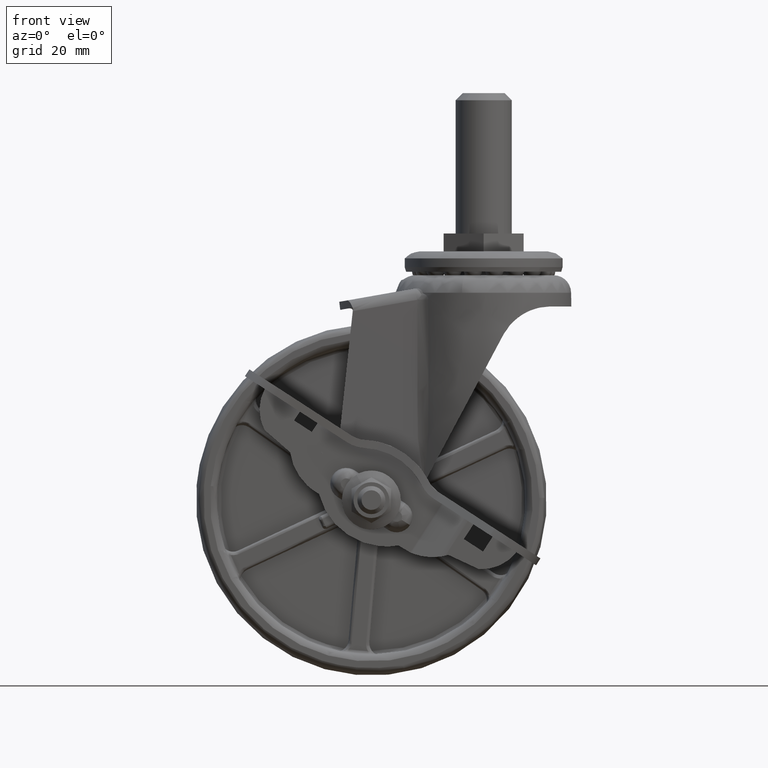
[diagram: clean part render]
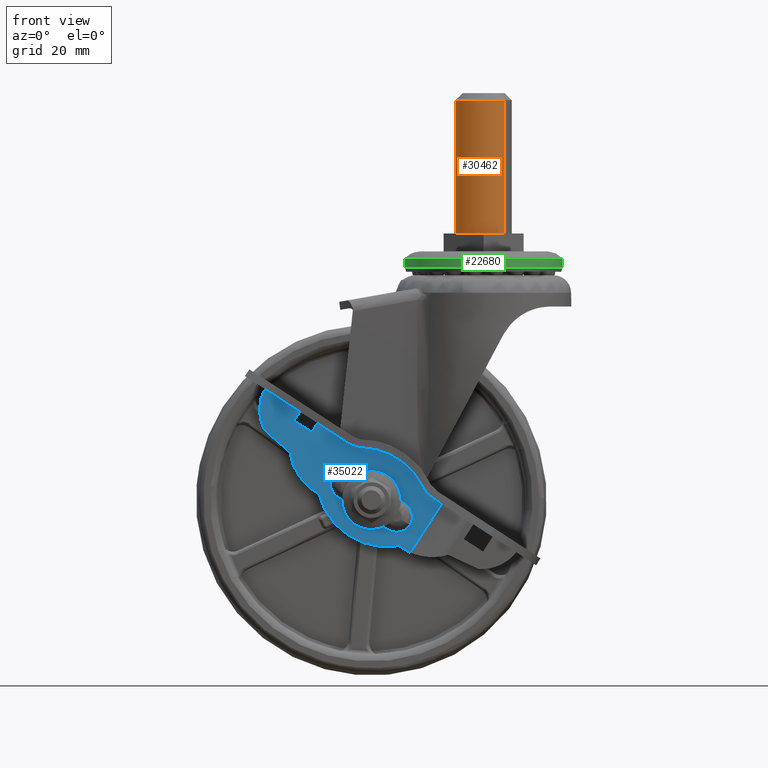
[diagram: same view with three faces highlighted in distinct colors, each labeled with its STEP entity id]
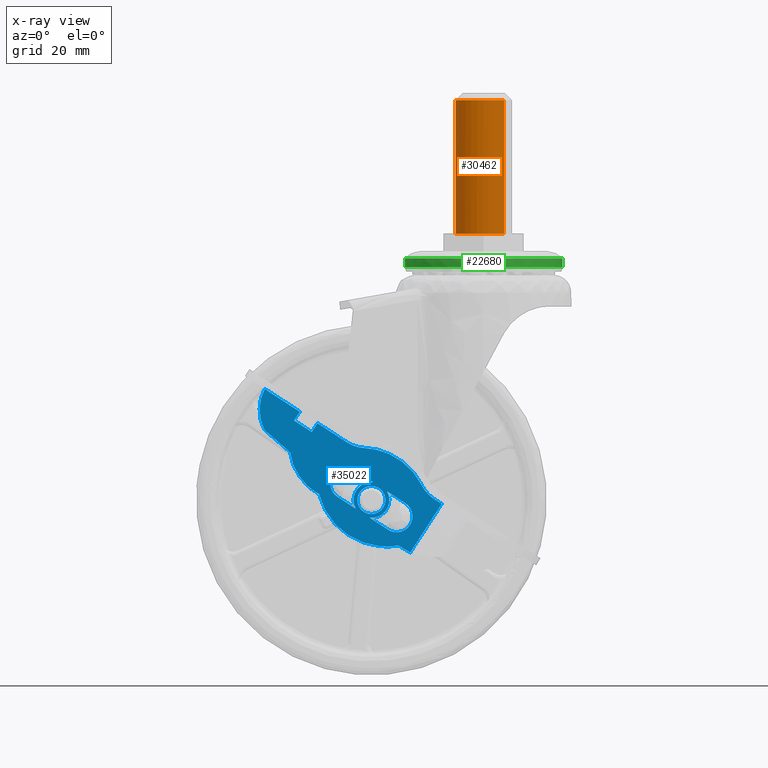
[diagram: x-ray of the same camera — body ghosted, the three highlighted faces saturated]
A machine part, front view with three faces highlighted in distinct colors.
The next image is the same camera in x-ray (body ghosted, the three faces saturated) — at least one of them is partly hidden behind the body in this view.
Their STEP definitions:

[orange] entity #30462 — the highlighted face is a freeform B-spline surface patch.
#30265=CARTESIAN_POINT('',(25.891555207823110,5.165936009926591,76.000003999999905));
#30266=VERTEX_POINT('',#30265);
#30279=CARTESIAN_POINT('',(25.891555207823110,5.165936009926591,114.000004000000000));
#30280=VERTEX_POINT('',#30279);
#30281=CARTESIAN_POINT('',(25.891555207823110,5.165936009926591,114.000004000000000));
#30282=CARTESIAN_POINT('',(25.891555207823110,5.165936009926591,76.000003999999905));
#30283=QUASI_UNIFORM_CURVE('',1,(#30281,#30282),.UNSPECIFIED.,.F.,.U.);
#30284=EDGE_CURVE('',#30280,#30266,#30283,.T.);
#30312=CARTESIAN_POINT('',(37.802994714591463,-5.506836364980723,114.000004232989600));
#30313=VERTEX_POINT('',#30312);
#30324=CARTESIAN_POINT('',(37.802994665510028,-5.506836247465170,76.000003999999905));
#30325=VERTEX_POINT('',#30324);
#30326=CARTESIAN_POINT('',(37.802994714591463,-5.506836364980723,114.000004232989600));
#30327=CARTESIAN_POINT('',(37.802994665510028,-5.506836247465170,76.000003999999905));
#30328=QUASI_UNIFORM_CURVE('',1,(#30326,#30327),.UNSPECIFIED.,.F.,.U.);
#30329=EDGE_CURVE('',#30313,#30325,#30328,.T.);
#30359=CARTESIAN_POINT('',(37.802994968098297,-5.506836605550030,114.950004000000010));
#30360=CARTESIAN_POINT('',(32.296158362548276,-11.309831573648330,114.950004000000040));
#30361=CARTESIAN_POINT('',(26.493163394449969,-5.802994968098299,114.950004000000010));
#30362=CARTESIAN_POINT('',(21.013085134599439,-0.602594876675613,114.950004000000020));
#30363=CARTESIAN_POINT('',(25.891554856476279,5.165936307056203,114.950004000000080));
#30364=CARTESIAN_POINT('',(37.802994968098297,-5.506836605550030,75.026253999999909));
#30365=CARTESIAN_POINT('',(32.296158362548276,-11.309831573648330,75.026253999999895));
#30366=CARTESIAN_POINT('',(26.493163394449969,-5.802994968098299,75.026253999999909));
#30367=CARTESIAN_POINT('',(21.013085134599439,-0.602594876675613,75.026253999999909));
#30368=CARTESIAN_POINT('',(25.891554856476279,5.165936307056203,75.026253999999923));
#30376=(BOUNDED_SURFACE()B_SPLINE_SURFACE(2,1,((#30359,#30364),(#30360,#30365),(#30361,#30366),(#30362,#30367),(#30363,#30368)),.UNSPECIFIED.,.F.,.F.,.U.)B_SPLINE_SURFACE_WITH_KNOTS((3,2,3),(2,2),(0.0,13.254833995939030,25.979474632040500),(0.0,39.923750000000133),.UNSPECIFIED.)GEOMETRIC_REPRESENTATION_ITEM()RATIONAL_B_SPLINE_SURFACE(((1.0,1.0),(0.707106781186548,0.707106781186548),(1.0,1.0),(0.718822509939086,0.718822509939086),(0.977505800795127,0.977505800795127)))REPRESENTATION_ITEM('')SURFACE());
#30377=CARTESIAN_POINT('',(24.0,0.0,76.000003999999905));
#30378=VERTEX_POINT('',#30377);
#30379=CARTESIAN_POINT('',(24.0,0.0,76.000003999999905));
#30380=CARTESIAN_POINT('',(23.999847842940671,0.643510031171080,76.000004000000018));
#30381=CARTESIAN_POINT('',(24.149019821728761,1.871927519651791,76.000003999999777));
#30382=CARTESIAN_POINT('',(24.796541092662739,3.640393637950841,76.000003999999890));
#30383=CARTESIAN_POINT('',(25.475913601007068,4.674668688427484,76.000003999999777));
#30384=CARTESIAN_POINT('',(25.891555207823110,5.165936009926591,76.000003999999905));
#30385=B_SPLINE_CURVE_WITH_KNOTS('',3,(#30379,#30380,#30381,#30382,#30383,#30384),.UNSPECIFIED.,.F.,.U.,(4,1,1,4),(0.000000036364717,1.930497636406071,3.685488021948359,5.615985621996162),.UNSPECIFIED.);
#30386=EDGE_CURVE('',#30378,#30266,#30385,.T.);
#30387=ORIENTED_EDGE('',*,*,#30386,.F.);
#30388=CARTESIAN_POINT('',(31.999998133525619,-7.999999999999782,76.000003999999905));
#30389=VERTEX_POINT('',#30388);
#30390=CARTESIAN_POINT('',(31.999998133525619,-7.999999999999782,76.000003999999905));
#30391=CARTESIAN_POINT('',(31.443675204074591,-8.000075926784309,76.000003999999933));
#30392=CARTESIAN_POINT('',(30.298326723929989,-7.880068269526567,76.000003999999905));
#30393=CARTESIAN_POINT('',(28.735132266251409,-7.363747761990829,76.000004000000104));
#30394=CARTESIAN_POINT('',(27.481430559701099,-6.643180828967821,76.000003999999336));
#30395=CARTESIAN_POINT('',(26.436681955353979,-5.796457646848727,76.000004000000700));
#30396=CARTESIAN_POINT('',(25.450210183873800,-4.694690556893815,76.000003999999521));
#30397=CARTESIAN_POINT('',(24.596522594283780,-3.209207920545875,76.000003999998412));
#30398=CARTESIAN_POINT('',(24.099652464510360,-1.570795052904364,76.000004000001596));
#30399=CARTESIAN_POINT('',(23.999962568613139,-0.490869182397266,76.000003999998938));
#30400=CARTESIAN_POINT('',(24.0,0.0,76.000003999999905));
#30401=B_SPLINE_CURVE_WITH_KNOTS('',3,(#30390,#30391,#30392,#30393,#30394,#30395,#30396,#30397,#30398,#30399,#30400),.UNSPECIFIED.,.F.,.U.,(4,1,1,1,1,1,1,1,4),(0.000000189147151,1.668967450818563,3.436141477493944,4.908803373754573,5.988703324687878,7.461324698652976,9.326659235644957,11.093825735496599,12.566448411033610),.UNSPECIFIED.);
#30402=EDGE_CURVE('',#30389,#30378,#30401,.T.);
#30403=ORIENTED_EDGE('',*,*,#30402,.F.);
#30404=CARTESIAN_POINT('',(37.802994665510028,-5.506836247465170,76.000003999999905));
#30405=CARTESIAN_POINT('',(37.453874921919123,-5.874812001144023,76.000004000000033));
#30406=CARTESIAN_POINT('',(36.659697057229863,-6.566323135300713,76.000003999999393));
#30407=CARTESIAN_POINT('',(35.273294143307218,-7.360060438259339,76.000004000001127));
#30408=CARTESIAN_POINT('',(33.690744139871818,-7.879208117960345,76.000003999997588));
#30409=CARTESIAN_POINT('',(32.574873519846072,-8.000083604101032,76.000004000002122));
#30410=CARTESIAN_POINT('',(31.999998133525619,-7.999999999999782,76.000003999999905));
#30411=B_SPLINE_CURVE_WITH_KNOTS('',3,(#30404,#30405,#30406,#30407,#30408,#30409,#30410),.UNSPECIFIED.,.F.,.U.,(4,1,1,1,4),(0.000000050936960,1.521718034725405,3.144914802204537,4.768053032111243,6.492670045708849),.UNSPECIFIED.);
#30412=EDGE_CURVE('',#30325,#30389,#30411,.T.);
#30413=ORIENTED_EDGE('',*,*,#30412,.F.);
#30414=ORIENTED_EDGE('',*,*,#30329,.F.);
#30415=CARTESIAN_POINT('',(31.999998133525619,-7.999999999999782,114.000004000000000));
#30416=VERTEX_POINT('',#30415);
#30417=CARTESIAN_POINT('',(37.802994714591463,-5.506836364980723,114.000004232989600));
#30418=CARTESIAN_POINT('',(37.453873612858089,-5.874808428165771,114.000004218972410));
#30419=CARTESIAN_POINT('',(36.659701487294633,-6.566343893410373,114.000004187086900));
#30420=CARTESIAN_POINT('',(35.479773124890642,-7.241786534217427,114.000004139712000));
#30421=CARTESIAN_POINT('',(33.927290746897157,-7.828671342839466,114.000004077381400));
#30422=CARTESIAN_POINT('',(32.811652438413780,-8.000442887828745,114.000004032587000));
#30423=CARTESIAN_POINT('',(31.999998133525619,-7.999999999999782,114.000004000000000));
#30424=B_SPLINE_CURVE_WITH_KNOTS('',3,(#30417,#30418,#30419,#30420,#30421,#30422,#30423),.UNSPECIFIED.,.F.,.U.,(4,1,1,1,4),(0.000000050934914,1.521718033746181,3.144914800175962,4.057901419125371,6.492670041523095),.UNSPECIFIED.);
#30425=EDGE_CURVE('',#30313,#30416,#30424,.T.);
#30426=ORIENTED_EDGE('',*,*,#30425,.T.);
#30427=CARTESIAN_POINT('',(26.834063232802428,-6.108445687599193,114.000003747577400));
#30428=VERTEX_POINT('',#30427);
#30429=CARTESIAN_POINT('',(31.999998133525619,-7.999999999999782,114.000004000000000));
#30430=CARTESIAN_POINT('',(31.356486042352529,-8.000168508811900,114.000003968555800));
#30431=CARTESIAN_POINT('',(30.274336689396389,-7.868655386055015,114.000003915679500));
#30432=CARTESIAN_POINT('',(28.493418223903650,-7.271514451139088,114.000003828658190));
#30433=CARTESIAN_POINT('',(27.436893104623699,-6.618707538146733,114.000003777033200));
#30434=CARTESIAN_POINT('',(26.834063232802428,-6.108445687599193,114.000003747577400));
#30435=B_SPLINE_CURVE_WITH_KNOTS('',3,(#30429,#30430,#30431,#30432,#30433,#30434),.UNSPECIFIED.,.F.,.U.,(4,1,1,4),(0.000000036375527,1.930497136305400,3.246738936219176,5.615984167119279),.UNSPECIFIED.);
#30436=EDGE_CURVE('',#30416,#30428,#30435,.T.);
#30437=ORIENTED_EDGE('',*,*,#30436,.T.);
#30438=CARTESIAN_POINT('',(24.0,0.0,114.000004000000000));
#30439=VERTEX_POINT('',#30438);
#30440=CARTESIAN_POINT('',(26.834063232802428,-6.108445687599193,114.000003747577400));
#30441=CARTESIAN_POINT('',(26.336401824703820,-5.687799066357888,114.000003764959800));
#30442=CARTESIAN_POINT('',(25.618315170450881,-4.911307649932366,114.000003797047500));
#30443=CARTESIAN_POINT('',(24.764721839171632,-3.518495185265170,114.000003854603310));
#30444=CARTESIAN_POINT('',(24.164444219343540,-1.954712408702894,114.000003919224200));
#30445=CARTESIAN_POINT('',(23.999786618403590,-0.687825386447249,114.000003971576700));
#30446=CARTESIAN_POINT('',(24.0,0.0,114.000004000000000));
#30447=B_SPLINE_CURVE_WITH_KNOTS('',3,(#30440,#30441,#30442,#30443,#30444,#30445,#30446),.UNSPECIFIED.,.F.,.U.,(4,1,1,1,4),(0.000000062096596,1.954819805773499,3.149447453545784,4.887040481567366,6.950466656076021),.UNSPECIFIED.);
#30448=EDGE_CURVE('',#30428,#30439,#30447,.T.);
#30449=ORIENTED_EDGE('',*,*,#30448,.T.);
#30450=CARTESIAN_POINT('',(24.0,0.0,114.000004000000000));
#30451=CARTESIAN_POINT('',(23.999883909884481,0.585008402496643,114.000004000000100));
#30452=CARTESIAN_POINT('',(24.106404465789790,1.550173353363872,114.000003999999810));
#30453=CARTESIAN_POINT('',(24.644110545050001,3.348294747636564,114.000004000000500));
#30454=CARTESIAN_POINT('',(25.305443121599549,4.473926253882575,114.000003999999510));
#30455=CARTESIAN_POINT('',(25.891555207823110,5.165936009926591,114.000004000000000));
#30456=B_SPLINE_CURVE_WITH_KNOTS('',3,(#30450,#30451,#30452,#30453,#30454,#30455),.UNSPECIFIED.,.F.,.U.,(4,1,1,4),(0.000000036364717,1.754998618458814,2.895715538095117,5.615985621996162),.UNSPECIFIED.);
#30457=EDGE_CURVE('',#30439,#30280,#30456,.T.);
#30458=ORIENTED_EDGE('',*,*,#30457,.T.);
#30459=ORIENTED_EDGE('',*,*,#30284,.T.);
#30460=EDGE_LOOP('',(#30387,#30403,#30413,#30414,#30426,#30437,#30449,#30458,#30459));
#30461=FACE_OUTER_BOUND('',#30460,.T.);
#30462=ADVANCED_FACE('',(#30461),#30376,.T.);

[blue] entity #35022 — the highlighted face is a freeform B-spline surface patch.
#31785=CARTESIAN_POINT('',(-3.999999999999116,-20.599997999999999,0.000002659344975));
#31786=VERTEX_POINT('',#31785);
#31787=CARTESIAN_POINT('',(-2.853002393134256,-20.599997999982889,2.803637398568071));
#31788=VERTEX_POINT('',#31787);
#31789=CARTESIAN_POINT('',(-3.999999999999116,-20.599997999999999,0.000002659344975));
#31790=CARTESIAN_POINT('',(-4.000114793399001,-20.599997999997829,0.355989914047486));
#31791=CARTESIAN_POINT('',(-3.917351236130132,-20.599997999994109,0.970785736977809));
#31792=CARTESIAN_POINT('',(-3.546900695545857,-20.599997999988119,1.943074696132661));
#31793=CARTESIAN_POINT('',(-3.148058123930286,-20.599997999984719,2.503706915100477));
#31794=CARTESIAN_POINT('',(-2.853002393134256,-20.599997999982889,2.803637398568071));
#31795=B_SPLINE_CURVE_WITH_KNOTS('',3,(#31789,#31790,#31791,#31792,#31793,#31794),.UNSPECIFIED.,.F.,.U.,(4,1,1,4),(0.000000041342588,1.067959592742188,1.844626081363610,3.106759728535650),.UNSPECIFIED.);
#31796=EDGE_CURVE('',#31786,#31788,#31795,.T.);
#31798=CARTESIAN_POINT('',(0.0,-20.599997999999999,-4.0));
#31799=VERTEX_POINT('',#31798);
#31800=CARTESIAN_POINT('',(0.0,-20.599997999999999,-4.0));
#31801=CARTESIAN_POINT('',(-0.458190125019186,-20.599997999999999,-4.000270218245190));
#31802=CARTESIAN_POINT('',(-1.177922034147095,-20.599998000000010,-3.874946366984247));
#31803=CARTESIAN_POINT('',(-2.069649927774568,-20.599997999999999,-3.452980205692264));
#31804=CARTESIAN_POINT('',(-2.835788179877818,-20.599998000000010,-2.885097272799270));
#31805=CARTESIAN_POINT('',(-3.436270836559393,-20.599997999999971,-2.134712337973735));
#31806=CARTESIAN_POINT('',(-3.889271402200499,-20.599998000000049,-1.112504758669278));
#31807=CARTESIAN_POINT('',(-4.000231151162418,-20.599997999999879,-0.425449963570070));
#31808=CARTESIAN_POINT('',(-3.999999999999116,-20.599997999999999,0.000002659344975));
#31809=B_SPLINE_CURVE_WITH_KNOTS('',3,(#31800,#31801,#31802,#31803,#31804,#31805,#31806,#31807,#31808),.UNSPECIFIED.,.F.,.U.,(4,1,1,1,1,1,4),(0.000000106997262,1.374480489088280,2.159925737196872,2.945334125939792,4.221602233078444,5.007048705688931,6.283344476228193),.UNSPECIFIED.);
#31810=EDGE_CURVE('',#31799,#31786,#31809,.T.);
#31812=CARTESIAN_POINT('',(3.999999999999116,-20.599997999999999,-0.000002659344962));
#31813=VERTEX_POINT('',#31812);
#31814=CARTESIAN_POINT('',(3.999999999999116,-20.599997999999999,-0.000002659344962));
#31815=CARTESIAN_POINT('',(4.000182247015878,-20.599997999999999,-0.392723043180478));
#31816=CARTESIAN_POINT('',(3.902792567816218,-20.599997999999999,-1.047108449243113));
#31817=CARTESIAN_POINT('',(3.550414151882421,-20.599998000000010,-1.897745099689633));
#31818=CARTESIAN_POINT('',(3.038984528893709,-20.599997999999960,-2.663395669878108));
#31819=CARTESIAN_POINT('',(2.328183865178541,-20.599997999999971,-3.307623950185911));
#31820=CARTESIAN_POINT('',(1.275974016967522,-20.599998000000049,-3.853468570959291));
#31821=CARTESIAN_POINT('',(0.490956482440489,-20.599997999999989,-4.000457285593745));
#31822=CARTESIAN_POINT('',(0.0,-20.599997999999999,-4.0));
#31823=B_SPLINE_CURVE_WITH_KNOTS('',3,(#31814,#31815,#31816,#31817,#31818,#31819,#31820,#31821,#31822),.UNSPECIFIED.,.F.,.U.,(4,1,1,1,1,1,4),(0.000000110644378,1.178116819951383,1.963560104039633,2.748990306226920,3.927054563267981,4.810684243220260,6.283341478451811),.UNSPECIFIED.);
#31824=EDGE_CURVE('',#31813,#31799,#31823,.T.);
#31826=CARTESIAN_POINT('',(2.803636458468625,-20.599998000017411,2.853001453007910));
#31827=VERTEX_POINT('',#31826);
#31828=CARTESIAN_POINT('',(2.803636458468625,-20.599998000017411,2.853001453007910));
#31829=CARTESIAN_POINT('',(2.992457688304966,-20.599998000016281,2.667481213783360));
#31830=CARTESIAN_POINT('',(3.354365805613513,-20.599998000013620,2.233250515288067));
#31831=CARTESIAN_POINT('',(3.850213758089908,-20.599998000007901,1.290174126079419));
#31832=CARTESIAN_POINT('',(4.000458294831430,-20.599998000003009,0.496402422948831));
#31833=CARTESIAN_POINT('',(3.999999999999116,-20.599997999999999,-0.000002659344962));
#31834=B_SPLINE_CURVE_WITH_KNOTS('',3,(#31828,#31829,#31830,#31831,#31832,#31833),.UNSPECIFIED.,.F.,.U.,(4,1,1,4),(0.000000046116884,0.794145862405030,1.687553033527310,3.176583311475166),.UNSPECIFIED.);
#31835=EDGE_CURVE('',#31827,#31813,#31834,.T.);
#31916=CARTESIAN_POINT('',(0.0,-20.599997999999999,4.0));
#31917=VERTEX_POINT('',#31916);
#31918=CARTESIAN_POINT('',(-2.853002393134256,-20.599997999982889,2.803637398568071));
#31919=CARTESIAN_POINT('',(-2.597966208041948,-20.599997999984410,3.063340268168830));
#31920=CARTESIAN_POINT('',(-2.042780086373889,-20.599997999987789,3.491875479594836));
#31921=CARTESIAN_POINT('',(-1.058783485551710,-20.599997999993619,3.904525681214009));
#31922=CARTESIAN_POINT('',(-0.363989897876837,-20.599997999997822,4.000114526771202));
#31923=CARTESIAN_POINT('',(0.0,-20.599997999999999,4.0));
#31924=B_SPLINE_CURVE_WITH_KNOTS('',3,(#31918,#31919,#31920,#31921,#31922,#31923),.UNSPECIFIED.,.F.,.U.,(4,1,1,4),(0.000000046051216,1.091961465703093,2.084619748657268,3.176581168237858),.UNSPECIFIED.);
#31925=EDGE_CURVE('',#31788,#31917,#31924,.T.);
#31949=CARTESIAN_POINT('',(0.0,-20.599997999999999,4.0));
#31950=CARTESIAN_POINT('',(0.355988445275423,-20.599998000002230,4.000116438927324));
#31951=CARTESIAN_POINT('',(0.970782217243040,-20.599998000006028,3.917345440075245));
#31952=CARTESIAN_POINT('',(1.943081822720900,-20.599998000012050,3.546915145898034));
#31953=CARTESIAN_POINT('',(2.503697797299604,-20.599998000015560,3.148044481832762));
#31954=CARTESIAN_POINT('',(2.803636458468625,-20.599998000017411,2.853001453007910));
#31955=B_SPLINE_CURVE_WITH_KNOTS('',3,(#31949,#31950,#31951,#31952,#31953,#31954),.UNSPECIFIED.,.F.,.U.,(4,1,1,4),(0.000000041281595,1.067960325557815,1.844627347000021,3.106761860199232),.UNSPECIFIED.);
#31956=EDGE_CURVE('',#31917,#31827,#31955,.T.);
#32146=CARTESIAN_POINT('',(17.419007971396450,-20.599995000000000,-6.528239579675030));
#32147=VERTEX_POINT('',#32146);
#32162=CARTESIAN_POINT('',(17.419007971396450,-20.599995000000050,9.999901710113640));
#32163=VERTEX_POINT('',#32162);
#32171=CARTESIAN_POINT('',(17.419007971396450,-20.599995000000000,-6.528239579675030));
#32172=CARTESIAN_POINT('',(17.419007971396450,-20.599995000000050,9.999901710113640));
#32173=QUASI_UNIFORM_CURVE('',1,(#32171,#32172),.UNSPECIFIED.,.F.,.U.);
#32174=EDGE_CURVE('',#32147,#32163,#32173,.T.);
#32819=CARTESIAN_POINT('',(-8.600002004001491,-20.599998000000049,4.499999817902670));
#32820=VERTEX_POINT('',#32819);
#32834=CARTESIAN_POINT('',(-13.100000239122000,-20.599998000000049,0.000002713105056));
#32835=VERTEX_POINT('',#32834);
#32836=CARTESIAN_POINT('',(-13.100000239122000,-20.599998000000049,0.000002713105056));
#32837=CARTESIAN_POINT('',(-13.100021250728330,-20.599998000000049,0.294516051601220));
#32838=CARTESIAN_POINT('',(-13.034776033689511,-20.599998000000060,0.957208148606573));
#32839=CARTESIAN_POINT('',(-12.685792961055450,-20.599998000000060,2.013881728582223));
#32840=CARTESIAN_POINT('',(-11.962268563344040,-20.599998000000010,3.097082203859753));
#32841=CARTESIAN_POINT('',(-11.001539096523860,-20.599998000000159,3.865831862658455));
#32842=CARTESIAN_POINT('',(-9.851563309469809,-20.599997999999871,4.375399510154083));
#32843=CARTESIAN_POINT('',(-9.078643144027039,-20.599998000000191,4.500287044772153));
#32844=CARTESIAN_POINT('',(-8.600002004001491,-20.599998000000049,4.499999817902670));
#32845=B_SPLINE_CURVE_WITH_KNOTS('',3,(#32836,#32837,#32838,#32839,#32840,#32841,#32842,#32843,#32844),.UNSPECIFIED.,.F.,.U.,(4,1,1,1,1,1,4),(0.000000090780643,0.883574610589159,1.988093644369811,3.313494045979655,4.749317224584342,5.632918526467256,7.068758148623585),.UNSPECIFIED.);
#32846=EDGE_CURVE('',#32835,#32820,#32845,.T.);
#32848=CARTESIAN_POINT('',(-8.600002503814650,-20.599998000000049,-4.499999846824526));
#32849=VERTEX_POINT('',#32848);
#32850=CARTESIAN_POINT('',(-8.600002503814650,-20.599998000000049,-4.499999846824526));
#32851=CARTESIAN_POINT('',(-9.041804450769609,-20.599998000000060,-4.500193402472565));
#32852=CARTESIAN_POINT('',(-9.814832482490591,-20.599998000000060,-4.385208115225157));
#32853=CARTESIAN_POINT('',(-10.734014472416000,-20.599998000000049,-3.991118261695493));
#32854=CARTESIAN_POINT('',(-11.439972823340179,-20.599998000000031,-3.519393710795543));
#32855=CARTESIAN_POINT('',(-12.029416104331810,-20.599998000000120,-2.958226920184599));
#32856=CARTESIAN_POINT('',(-12.540633383497900,-20.599997999999982,-2.232349942130576));
#32857=CARTESIAN_POINT('',(-12.975417866951650,-20.599998000000109,-1.251568129819948));
#32858=CARTESIAN_POINT('',(-13.100294618379831,-20.599998000000021,-0.478642007671842));
#32859=CARTESIAN_POINT('',(-13.100000239122000,-20.599998000000049,0.000002713105056));
#32860=B_SPLINE_CURVE_WITH_KNOTS('',3,(#32850,#32851,#32852,#32853,#32854,#32855,#32856,#32857,#32858,#32859),.UNSPECIFIED.,.F.,.U.,(4,1,1,1,1,1,1,4),(0.000000087387338,1.325383863698427,2.319449881345633,2.982154067841628,3.865717115931084,4.749319102387242,5.632920752636263,7.068760941593856),.UNSPECIFIED.);
#32861=EDGE_CURVE('',#32849,#32835,#32860,.T.);
#32920=CARTESIAN_POINT('',(-2.404269113033500,-20.599997999999999,-4.500002964919260));
#32921=VERTEX_POINT('',#32920);
#32965=CARTESIAN_POINT('',(-8.600002503814650,-20.599998000000049,-4.499999846824526));
#32966=CARTESIAN_POINT('',(-2.404269113033500,-20.599997999999999,-4.500002964919260));
#32967=QUASI_UNIFORM_CURVE('',1,(#32965,#32966),.UNSPECIFIED.,.F.,.U.);
#32968=EDGE_CURVE('',#32849,#32921,#32967,.T.);
#32987=CARTESIAN_POINT('',(-2.404270455171770,-20.599997999999999,4.500002247839120));
#32988=VERTEX_POINT('',#32987);
#33032=CARTESIAN_POINT('',(-2.404270455171770,-20.599997999999999,4.500002247839120));
#33033=CARTESIAN_POINT('',(-8.600002004001491,-20.599998000000049,4.499999817902670));
#33034=QUASI_UNIFORM_CURVE('',1,(#33032,#33033),.UNSPECIFIED.,.F.,.U.);
#33035=EDGE_CURVE('',#32988,#32820,#33034,.T.);
#33091=CARTESIAN_POINT('',(13.100000239123339,-20.599998000000049,-0.000000969659531));
#33092=VERTEX_POINT('',#33091);
#33105=CARTESIAN_POINT('',(8.599998474244751,-20.599998000000049,4.500006563661061));
#33106=VERTEX_POINT('',#33105);
#33107=CARTESIAN_POINT('',(8.599998474244751,-20.599998000000049,4.500006563661061));
#33108=CARTESIAN_POINT('',(8.968163772292783,-20.599998000000031,4.500118360786585));
#33109=CARTESIAN_POINT('',(9.630787028121574,-20.599998000000092,4.418197617791265));
#33110=CARTESIAN_POINT('',(10.536410808543270,-20.599998000000021,4.094190919451374));
#33111=CARTESIAN_POINT('',(11.297930126269600,-20.599998000000060,3.637740337422949));
#33112=CARTESIAN_POINT('',(12.038074045237879,-20.599998000000038,2.967011081863597));
#33113=CARTESIAN_POINT('',(12.626606814188650,-20.599998000000060,2.109273735981320));
#33114=CARTESIAN_POINT('',(13.013667097657670,-20.599997999999889,1.067601799274640));
#33115=CARTESIAN_POINT('',(13.100085434139110,-20.599998000000198,0.368162255579845));
#33116=CARTESIAN_POINT('',(13.100000239123339,-20.599998000000049,-0.000000969659531));
#33117=B_SPLINE_CURVE_WITH_KNOTS('',3,(#33107,#33108,#33109,#33110,#33111,#33112,#33113,#33114,#33115,#33116),.UNSPECIFIED.,.F.,.U.,(4,1,1,1,1,1,1,4),(0.000000090425846,1.104481562927635,1.988096695476520,2.871707991114341,3.755274238373714,4.970226386678196,5.964280230598077,7.068768997870100),.UNSPECIFIED.);
#33118=EDGE_CURVE('',#33106,#33092,#33117,.T.);
#33163=CARTESIAN_POINT('',(2.404266925412065,-20.599997999999999,4.500004133724610));
#33164=VERTEX_POINT('',#33163);
#33208=CARTESIAN_POINT('',(8.599998474244751,-20.599998000000049,4.500006563661061));
#33209=CARTESIAN_POINT('',(2.404266925412065,-20.599997999999999,4.500004133724610));
#33210=QUASI_UNIFORM_CURVE('',1,(#33208,#33209),.UNSPECIFIED.,.F.,.U.);
#33211=EDGE_CURVE('',#33106,#33164,#33210,.T.);
#33251=CARTESIAN_POINT('',(8.599997974431599,-20.599998000000049,-4.500008502979901));
#33252=VERTEX_POINT('',#33251);
#33264=CARTESIAN_POINT('',(13.100000239123339,-20.599998000000049,-0.000000969659531));
#33265=CARTESIAN_POINT('',(13.100210710510980,-20.599998000000060,-0.441812474931998));
#33266=CARTESIAN_POINT('',(12.990641330480431,-20.599998000000038,-1.177994956813990));
#33267=CARTESIAN_POINT('',(12.594231414142490,-20.599998000000060,-2.134975676048819));
#33268=CARTESIAN_POINT('',(12.100980200874449,-20.599998000000038,-2.873187991853914));
#33269=CARTESIAN_POINT('',(11.499315472013519,-20.599998000000060,-3.474792586047733));
#33270=CARTESIAN_POINT('',(10.707158239670591,-20.599998000000021,-4.018453405157779));
#33271=CARTESIAN_POINT('',(9.741267656584073,-20.599998000000170,-4.404643451461394));
#33272=CARTESIAN_POINT('',(8.968153942359406,-20.599997999999822,-4.500085408567428));
#33273=CARTESIAN_POINT('',(8.599997974431599,-20.599998000000049,-4.500008502979901));
#33274=B_SPLINE_CURVE_WITH_KNOTS('',3,(#33264,#33265,#33266,#33267,#33268,#33269,#33270,#33271,#33272,#33273),.UNSPECIFIED.,.F.,.U.,(4,1,1,1,1,1,1,4),(0.000000089736719,1.325385407898647,2.209000696414757,3.092606069815572,3.976170075179722,4.749324627321556,5.964280372790872,7.068769166076214),.UNSPECIFIED.);
#33275=EDGE_CURVE('',#33092,#33252,#33274,.T.);
#33306=CARTESIAN_POINT('',(2.404264583645800,-20.599997999999999,-4.500005384885160));
#33307=VERTEX_POINT('',#33306);
#33351=CARTESIAN_POINT('',(2.404264583645800,-20.599997999999999,-4.500005384885160));
#33352=CARTESIAN_POINT('',(8.599997974431599,-20.599998000000049,-4.500008502979901));
#33353=QUASI_UNIFORM_CURVE('',1,(#33351,#33352),.UNSPECIFIED.,.F.,.U.);
#33354=EDGE_CURVE('',#33307,#33252,#33353,.T.);
#33552=CARTESIAN_POINT('',(-24.822641958871301,-20.599995000000099,6.999903662449199));
#33553=VERTEX_POINT('',#33552);
#33566=CARTESIAN_POINT('',(-30.822633342957150,-20.599995000000050,6.999906432973430));
#33567=VERTEX_POINT('',#33566);
#33573=CARTESIAN_POINT('',(-24.822641958871301,-20.599995000000099,6.999903662449199));
#33574=CARTESIAN_POINT('',(-30.822633342957150,-20.599995000000050,6.999906432973430));
#33575=QUASI_UNIFORM_CURVE('',1,(#33573,#33574),.UNSPECIFIED.,.F.,.U.);
#33576=EDGE_CURVE('',#33553,#33567,#33575,.T.);
#33586=CARTESIAN_POINT('',(-24.822641270901450,-20.599995000000099,9.999900462693001));
#33587=VERTEX_POINT('',#33586);
#33599=CARTESIAN_POINT('',(-24.822641270901450,-20.599995000000099,9.999900462693001));
#33600=CARTESIAN_POINT('',(-24.822641958871301,-20.599995000000099,6.999903662449199));
#33601=QUASI_UNIFORM_CURVE('',1,(#33599,#33600),.UNSPECIFIED.,.F.,.U.);
#33602=EDGE_CURVE('',#33587,#33553,#33601,.T.);
#33612=CARTESIAN_POINT('',(-30.822632654987700,-20.599995000000099,9.999901669435650));
#33613=VERTEX_POINT('',#33612);
#33643=CARTESIAN_POINT('',(-30.822633342957150,-20.599995000000050,6.999906432973430));
#33644=CARTESIAN_POINT('',(-30.822632654987700,-20.599995000000099,9.999901669435650));
#33645=QUASI_UNIFORM_CURVE('',1,(#33643,#33644),.UNSPECIFIED.,.F.,.U.);
#33646=EDGE_CURVE('',#33567,#33613,#33645,.T.);
#33753=CARTESIAN_POINT('',(-2.404270455171770,-20.599997999999999,4.500002247839120));
#33754=CARTESIAN_POINT('',(-2.809375624131335,-20.599998000000060,4.283727722897188));
#33755=CARTESIAN_POINT('',(-3.513533062951845,-20.599997999999921,3.774649066652951));
#33756=CARTESIAN_POINT('',(-4.214267996651473,-20.599998000000081,2.928951170070882));
#33757=CARTESIAN_POINT('',(-4.702491096587749,-20.599997999999960,2.048369726177865));
#33758=CARTESIAN_POINT('',(-5.076032445220465,-20.599998000000038,0.955451319976688));
#33759=CARTESIAN_POINT('',(-5.160239251436306,-20.599997999999989,-0.466596782799452));
#33760=CARTESIAN_POINT('',(-4.829807024360631,-20.599998000000021,-1.788862546360701));
#33761=CARTESIAN_POINT('',(-4.336195141645873,-20.599998000000021,-2.734355136807319));
#33762=CARTESIAN_POINT('',(-3.622315005156052,-20.599997999999971,-3.674149112243540));
#33763=CARTESIAN_POINT('',(-2.936190124770258,-20.599998000000038,-4.216384534562227));
#33764=CARTESIAN_POINT('',(-2.404269113033500,-20.599997999999999,-4.500002964919260));
#33765=B_SPLINE_CURVE_WITH_KNOTS('',3,(#33753,#33754,#33755,#33756,#33757,#33758,#33759,#33760,#33761,#33762,#33763,#33764),.UNSPECIFIED.,.F.,.U.,(4,1,1,1,1,1,1,1,1,4),(0.000000377409336,1.377642274167462,2.583162850800310,3.272029597222439,4.391389577217612,6.027315921445515,7.491176457491763,8.438343233022504,9.213323898633524,11.021507584462629),.UNSPECIFIED.);
#33766=EDGE_CURVE('',#32988,#32921,#33765,.T.);
#33795=CARTESIAN_POINT('',(2.404264583645800,-20.599997999999999,-4.500005384885160));
#33796=CARTESIAN_POINT('',(2.809358463182625,-20.599997999999950,-4.283728836571696));
#33797=CARTESIAN_POINT('',(3.584040508486123,-20.599998000000092,-3.723802585541466));
#33798=CARTESIAN_POINT('',(4.355026656324252,-20.599997999999999,-2.743889646160882));
#33799=CARTESIAN_POINT('',(4.881219364575443,-20.599998000000070,-1.622564838174463));
#33800=CARTESIAN_POINT('',(5.139730967693303,-20.599997999999619,-0.463554844460551));
#33801=CARTESIAN_POINT('',(5.081171360386001,-20.599998000000390,0.923997170567652));
#33802=CARTESIAN_POINT('',(4.707058456555296,-20.599997999999470,2.082974141941886));
#33803=CARTESIAN_POINT('',(4.084925069898119,-20.599998000000362,3.120604429603169));
#33804=CARTESIAN_POINT('',(3.354480597772592,-20.599997999999580,3.903119102866514));
#33805=CARTESIAN_POINT('',(2.708051325772276,-20.599998000000380,4.337724103453842));
#33806=CARTESIAN_POINT('',(2.404266925412065,-20.599997999999999,4.500004133724610));
#33807=B_SPLINE_CURVE_WITH_KNOTS('',3,(#33795,#33796,#33797,#33798,#33799,#33800,#33801,#33802,#33803,#33804,#33805,#33806),.UNSPECIFIED.,.F.,.U.,(4,1,1,1,1,1,1,1,1,4),(0.000000377413505,1.377643416261531,2.841489341547248,3.702552665176516,5.080258817913386,6.371752093359675,7.835604274525411,8.696671045641573,9.988257937143279,11.021516722085799),.UNSPECIFIED.);
#33808=EDGE_CURVE('',#33307,#33164,#33807,.T.);
#34400=CARTESIAN_POINT('',(-14.759762260498460,-20.599995000000000,9.999907050476690));
#34401=VERTEX_POINT('',#34400);
#34402=CARTESIAN_POINT('',(-14.759762260498460,-20.599995000000000,9.999907050476690));
#34403=CARTESIAN_POINT('',(-24.822641270901450,-20.599995000000099,9.999900462693001));
#34404=QUASI_UNIFORM_CURVE('',1,(#34402,#34403),.UNSPECIFIED.,.F.,.U.);
#34405=EDGE_CURVE('',#34401,#33587,#34404,.T.);
#34416=CARTESIAN_POINT('',(-42.749997931908602,-20.599995000000000,9.999906707537431));
#34417=VERTEX_POINT('',#34416);
#34423=CARTESIAN_POINT('',(-30.822632654987700,-20.599995000000099,9.999901669435650));
#34424=CARTESIAN_POINT('',(-42.749997931908602,-20.599995000000000,9.999906707537431));
#34425=QUASI_UNIFORM_CURVE('',1,(#34423,#34424),.UNSPECIFIED.,.F.,.U.);
#34426=EDGE_CURVE('',#33613,#34417,#34425,.T.);
#34517=CARTESIAN_POINT('',(14.759765863911401,-20.599995000000000,9.999901770100861));
#34518=VERTEX_POINT('',#34517);
#34519=CARTESIAN_POINT('',(17.419007971396450,-20.599995000000050,9.999901710113640));
#34520=CARTESIAN_POINT('',(14.759765863911401,-20.599995000000000,9.999901770100861));
#34521=QUASI_UNIFORM_CURVE('',1,(#34519,#34520),.UNSPECIFIED.,.F.,.U.);
#34522=EDGE_CURVE('',#32163,#34518,#34521,.T.);
#34571=CARTESIAN_POINT('',(-36.346523480853897,-20.599995000000000,0.123933556907549));
#34572=VERTEX_POINT('',#34571);
#34578=CARTESIAN_POINT('',(-42.749997931908602,-20.599995000000000,9.999906707537431));
#34579=CARTESIAN_POINT('',(-42.668050618068357,-20.599994999999961,9.013617695959688));
#34580=CARTESIAN_POINT('',(-42.267157101592062,-20.599995000000110,7.060911470416404));
#34581=CARTESIAN_POINT('',(-41.142730684799460,-20.599994999999911,4.676277809463512));
#34582=CARTESIAN_POINT('',(-39.847845705641838,-20.599995000000170,2.925796152455209));
#34583=CARTESIAN_POINT('',(-38.364367173913791,-20.599995000000110,1.423170825207196));
#34584=CARTESIAN_POINT('',(-37.157591139833499,-20.599994999999922,0.570421106470698));
#34585=CARTESIAN_POINT('',(-36.346523480853897,-20.599995000000000,0.123933556907549));
#34586=B_SPLINE_CURVE_WITH_KNOTS('',3,(#34578,#34579,#34580,#34581,#34582,#34583,#34584,#34585),.UNSPECIFIED.,.F.,.U.,(4,1,1,1,1,4),(0.000000052189719,2.969016224996727,5.938039305156451,7.853511549503828,9.481698483112300,12.259164723482471),.UNSPECIFIED.);
#34587=EDGE_CURVE('',#34417,#34572,#34586,.T.);
#34600=CARTESIAN_POINT('',(-26.876802502138151,-20.599995000000000,-1.205191403941498));
#34601=VERTEX_POINT('',#34600);
#34607=CARTESIAN_POINT('',(-36.346523480853897,-20.599995000000000,0.123933556907549));
#34608=CARTESIAN_POINT('',(-26.876802502138151,-20.599995000000000,-1.205191403941498));
#34609=QUASI_UNIFORM_CURVE('',1,(#34607,#34608),.UNSPECIFIED.,.F.,.U.);
#34610=EDGE_CURVE('',#34572,#34601,#34609,.T.);
#34637=CARTESIAN_POINT('',(-13.500010966117561,-20.599995000000000,-6.700060375021470));
#34638=VERTEX_POINT('',#34637);
#34644=CARTESIAN_POINT('',(-26.876802502138151,-20.599995000000000,-1.205191403941498));
#34645=CARTESIAN_POINT('',(-26.034336836770500,-20.599994999999950,-2.181484848771320));
#34646=CARTESIAN_POINT('',(-24.490183193153779,-20.599995000000010,-3.584160557068757));
#34647=CARTESIAN_POINT('',(-21.706964678491499,-20.599994999999989,-5.266238088387287));
#34648=CARTESIAN_POINT('',(-19.021661614216050,-20.599994999999961,-6.278460251530685));
#34649=CARTESIAN_POINT('',(-16.121106326019131,-20.599994999999950,-6.765241411215177));
#34650=CARTESIAN_POINT('',(-14.356986868231770,-20.599995000000138,-6.768003391971639));
#34651=CARTESIAN_POINT('',(-13.500010966117561,-20.599995000000000,-6.700060375021470));
#34652=B_SPLINE_CURVE_WITH_KNOTS('',3,(#34644,#34645,#34646,#34647,#34648,#34649,#34650,#34651),.UNSPECIFIED.,.F.,.U.,(4,1,1,1,1,4),(0.000000046576751,3.868499115200967,6.213048207356202,9.729843762515488,12.426089436491861,15.005085952154751),.UNSPECIFIED.);
#34653=EDGE_CURVE('',#34601,#34638,#34652,.T.);
#34686=CARTESIAN_POINT('',(13.499990284681941,-20.599995000000000,-6.700055743151070));
#34687=VERTEX_POINT('',#34686);
#34693=CARTESIAN_POINT('',(-13.500010966117561,-20.599995000000000,-6.700060375021470));
#34694=CARTESIAN_POINT('',(-12.253496021386740,-20.599995000000010,-7.857882872292628));
#34695=CARTESIAN_POINT('',(-10.285349837302570,-20.599994999999979,-9.260757619388668));
#34696=CARTESIAN_POINT('',(-7.410655064474200,-20.599995000000021,-10.608290414260020));
#34697=CARTESIAN_POINT('',(-4.623516269467674,-20.599995000000121,-11.554983140408300));
#34698=CARTESIAN_POINT('',(-1.319484235268285,-20.599994999999769,-12.080807506349879));
#34699=CARTESIAN_POINT('',(2.169829259976249,-20.599995000000490,-11.958133064813950));
#34700=CARTESIAN_POINT('',(4.759447399369185,-20.599994999999250,-11.467955995266699));
#34701=CARTESIAN_POINT('',(7.566382749556624,-20.599995000000529,-10.587719270575960));
#34702=CARTESIAN_POINT('',(10.498501488956100,-20.599995000000028,-9.149717097814198));
#34703=CARTESIAN_POINT('',(12.593264101089730,-20.599994999999971,-7.541851112649263));
#34704=CARTESIAN_POINT('',(13.499990284681941,-20.599995000000000,-6.700055743151070));
#34705=B_SPLINE_CURVE_WITH_KNOTS('',3,(#34693,#34694,#34695,#34696,#34697,#34698,#34699,#34700,#34701,#34702,#34703,#34704),.UNSPECIFIED.,.F.,.U.,(4,1,1,1,1,1,1,1,1,4),(0.000000016198761,5.103655966556090,7.191542235315886,9.511403060403342,13.919124924013429,17.166904969552881,19.950716603823171,21.806610138386102,25.982362759293881,29.694113239705331),.UNSPECIFIED.);
#34706=EDGE_CURVE('',#34638,#34687,#34705,.T.);
#34745=CARTESIAN_POINT('',(13.499990284681941,-20.599995000000000,-6.700055743151070));
#34746=CARTESIAN_POINT('',(14.806789819909040,-20.599995000000000,-6.803747259174179));
#34747=CARTESIAN_POINT('',(16.126301034841649,-20.599995000000010,-6.745978955956522));
#34748=CARTESIAN_POINT('',(17.419007971396450,-20.599995000000000,-6.528239579675030));
#34749=B_SPLINE_CURVE_WITH_KNOTS('',3,(#34745,#34746,#34747,#34748),.UNSPECIFIED.,.F.,.U.,(4,4),(2.704839E-009,3.932680075085017),.UNSPECIFIED.);
#34750=EDGE_CURVE('',#34687,#32147,#34749,.T.);
#34786=CARTESIAN_POINT('',(-9.710423612149940,-20.599995000000000,11.368371268637100));
#34787=VERTEX_POINT('',#34786);
#34795=CARTESIAN_POINT('',(-14.759762260498460,-20.599995000000000,9.999907050476690));
#34796=CARTESIAN_POINT('',(-13.932701721838139,-20.599994999999939,9.999690841356493));
#34797=CARTESIAN_POINT('',(-12.168457824562189,-20.599995000000121,10.220090659966610));
#34798=CARTESIAN_POINT('',(-10.519321728742650,-20.599994999999929,10.894752267989951));
#34799=CARTESIAN_POINT('',(-9.710423612149940,-20.599995000000000,11.368371268637100));
#34800=B_SPLINE_CURVE_WITH_KNOTS('',3,(#34795,#34796,#34797,#34798,#34799),.UNSPECIFIED.,.F.,.U.,(4,1,4),(8.013801E-009,2.481154608427118,5.293129418927085),.UNSPECIFIED.);
#34801=EDGE_CURVE('',#34401,#34787,#34800,.T.);
#34824=CARTESIAN_POINT('',(9.710373442975710,-20.599995000000000,11.368395298122060));
#34825=VERTEX_POINT('',#34824);
#34826=CARTESIAN_POINT('',(9.710373442975710,-20.599995000000000,11.368395298122060));
#34827=CARTESIAN_POINT('',(8.932449994095999,-20.599995000000021,11.823488301238751));
#34828=CARTESIAN_POINT('',(6.978971486936674,-20.599995000000000,12.789005974504899));
#34829=CARTESIAN_POINT('',(4.017463019940425,-20.599995000000050,13.671096941143061));
#34830=CARTESIAN_POINT('',(1.115309764920377,-20.599994999999971,14.020599836034890));
#34831=CARTESIAN_POINT('',(-1.274321143837311,-20.599994999999989,14.000835221260560));
#34832=CARTESIAN_POINT('',(-3.856487976951172,-20.599995000000099,13.678934010516491));
#34833=CARTESIAN_POINT('',(-6.729594961756122,-20.599994999999801,12.887516572809700));
#34834=CARTESIAN_POINT('',(-8.749480163852375,-20.599995000000192,11.930602816181731));
#34835=CARTESIAN_POINT('',(-9.710423612149940,-20.599995000000000,11.368371268637100));
#34836=B_SPLINE_CURVE_WITH_KNOTS('',3,(#34826,#34827,#34828,#34829,#34830,#34831,#34832,#34833,#34834,#34835),.UNSPECIFIED.,.F.,.U.,(4,1,1,1,1,1,1,4),(0.000000056598804,2.703807064144506,6.520999506787282,9.224847089135025,11.451472207804430,13.678180607692150,17.018227004982720,20.358233716723859),.UNSPECIFIED.);
#34837=EDGE_CURVE('',#34825,#34787,#34836,.T.);
#34864=CARTESIAN_POINT('',(9.710373442975710,-20.599995000000000,11.368395298122060));
#34865=CARTESIAN_POINT('',(10.424155643814830,-20.599995000000000,10.950591160226161));
#34866=CARTESIAN_POINT('',(12.058254291793061,-20.599995000000028,10.249958043392470));
#34867=CARTESIAN_POINT('',(13.822402368645379,-20.599994999999989,9.999523169277621));
#34868=CARTESIAN_POINT('',(14.759765863911401,-20.599995000000000,9.999901770100861));
#34869=B_SPLINE_CURVE_WITH_KNOTS('',3,(#34864,#34865,#34866,#34867,#34868),.UNSPECIFIED.,.F.,.U.,(4,1,4),(8.014298E-009,2.481183458159577,5.293190965001235),.UNSPECIFIED.);
#34870=EDGE_CURVE('',#34825,#34518,#34869,.T.);
#34978=CARTESIAN_POINT('',(-45.755437965688749,-20.599995000000050,15.298685007022470));
#34979=CARTESIAN_POINT('',(20.424451232893610,-20.599995000000050,15.298685007022470));
#34980=CARTESIAN_POINT('',(-45.755437965688749,-20.599995000000050,-13.298739911764381));
#34981=CARTESIAN_POINT('',(20.424451232893610,-20.599995000000050,-13.298739911764381));
#34982=B_SPLINE_SURFACE_WITH_KNOTS('',1,1,((#34978,#34980),(#34979,#34981)),.UNSPECIFIED.,.F.,.F.,.U.,(2,2),(2,2),(0.0,66.179889198582359),(0.0,28.597424918786849),.UNSPECIFIED.);
#34983=ORIENTED_EDGE('',*,*,#34750,.T.);
#34984=ORIENTED_EDGE('',*,*,#32174,.T.);
#34985=ORIENTED_EDGE('',*,*,#34522,.T.);
#34986=ORIENTED_EDGE('',*,*,#34870,.F.);
#34987=ORIENTED_EDGE('',*,*,#34837,.T.);
#34988=ORIENTED_EDGE('',*,*,#34801,.F.);
#34989=ORIENTED_EDGE('',*,*,#34405,.T.);
#34990=ORIENTED_EDGE('',*,*,#33602,.T.);
#34991=ORIENTED_EDGE('',*,*,#33576,.T.);
#34992=ORIENTED_EDGE('',*,*,#33646,.T.);
#34993=ORIENTED_EDGE('',*,*,#34426,.T.);
#34994=ORIENTED_EDGE('',*,*,#34587,.T.);
#34995=ORIENTED_EDGE('',*,*,#34610,.T.);
#34996=ORIENTED_EDGE('',*,*,#34653,.T.);
#34997=ORIENTED_EDGE('',*,*,#34706,.T.);
#34998=EDGE_LOOP('',(#34983,#34984,#34985,#34986,#34987,#34988,#34989,#34990,#34991,#34992,#34993,#34994,#34995,#34996,#34997));
#34999=FACE_OUTER_BOUND('',#34998,.T.);
#35000=ORIENTED_EDGE('',*,*,#33354,.F.);
#35001=ORIENTED_EDGE('',*,*,#33808,.T.);
#35002=ORIENTED_EDGE('',*,*,#33211,.F.);
#35003=ORIENTED_EDGE('',*,*,#33118,.T.);
#35004=ORIENTED_EDGE('',*,*,#33275,.T.);
#35005=EDGE_LOOP('',(#35000,#35001,#35002,#35003,#35004));
#35006=FACE_BOUND('',#35005,.T.);
#35007=ORIENTED_EDGE('',*,*,#33766,.T.);
#35008=ORIENTED_EDGE('',*,*,#32968,.F.);
#35009=ORIENTED_EDGE('',*,*,#32861,.T.);
#35010=ORIENTED_EDGE('',*,*,#32846,.T.);
#35011=ORIENTED_EDGE('',*,*,#33035,.F.);
#35012=EDGE_LOOP('',(#35007,#35008,#35009,#35010,#35011));
#35013=FACE_BOUND('',#35012,.T.);
#35014=ORIENTED_EDGE('',*,*,#31824,.T.);
#35015=ORIENTED_EDGE('',*,*,#31810,.T.);
#35016=ORIENTED_EDGE('',*,*,#31796,.T.);
#35017=ORIENTED_EDGE('',*,*,#31925,.T.);
#35018=ORIENTED_EDGE('',*,*,#31956,.T.);
#35019=ORIENTED_EDGE('',*,*,#31835,.T.);
#35020=EDGE_LOOP('',(#35014,#35015,#35016,#35017,#35018,#35019));
#35021=FACE_BOUND('',#35020,.T.);
#35022=ADVANCED_FACE('',(#34999,#35006,#35013,#35021),#34982,.F.);

[green] entity #22680 — the highlighted face is a freeform B-spline surface patch.
#22476=CARTESIAN_POINT('',(29.183445790096144,22.323015530673104,68.962495181664266));
#22477=CARTESIAN_POINT('',(39.757221849568204,23.657136963951913,68.962495181664266));
#22478=CARTESIAN_POINT('',(47.487977953109457,16.320923347776471,68.962495181664266));
#22479=CARTESIAN_POINT('',(63.808901300885935,0.832945394667007,68.962495181664252));
#22480=CARTESIAN_POINT('',(48.320923347776471,-15.487977953109461,68.962495181664266));
#22481=CARTESIAN_POINT('',(32.832945394667007,-31.808901300885921,68.962495181664252));
#22482=CARTESIAN_POINT('',(16.512022046890539,-16.320923347776471,68.962495181664266));
#22483=CARTESIAN_POINT('',(0.191098699114072,-0.832945394667007,68.962495181664252));
#22484=CARTESIAN_POINT('',(15.679076652223531,15.487977953109461,68.962495181664266));
#22485=CARTESIAN_POINT('',(29.183445790096144,22.323015530673104,66.335880476717946));
#22486=CARTESIAN_POINT('',(39.757221849568204,23.657136963951913,66.335880476717932));
#22487=CARTESIAN_POINT('',(47.487977953109457,16.320923347776471,66.335880476717932));
#22488=CARTESIAN_POINT('',(63.808901300885935,0.832945394667007,66.335880476717932));
#22489=CARTESIAN_POINT('',(48.320923347776471,-15.487977953109461,66.335880476717932));
#22490=CARTESIAN_POINT('',(32.832945394667007,-31.808901300885921,66.335880476717932));
#22491=CARTESIAN_POINT('',(16.512022046890539,-16.320923347776471,66.335880476717932));
#22492=CARTESIAN_POINT('',(0.191098699114072,-0.832945394667007,66.335880476717932));
#22493=CARTESIAN_POINT('',(15.679076652223531,15.487977953109461,66.335880476717932));
#22501=(BOUNDED_SURFACE()B_SPLINE_SURFACE(2,1,((#22476,#22485),(#22477,#22486),(#22478,#22487),(#22479,#22488),(#22480,#22489),(#22481,#22490),(#22482,#22491),(#22483,#22492),(#22484,#22493)),.UNSPECIFIED.,.F.,.F.,.U.)B_SPLINE_SURFACE_WITH_KNOTS((3,2,2,2,3),(2,2),(0.0,20.876363543603990,58.155584157182552,95.434804770761104,132.714025384339690),(0.0,2.626614704946337),.UNSPECIFIED.)GEOMETRIC_REPRESENTATION_ITEM()RATIONAL_B_SPLINE_SURFACE(((0.855662221768731,0.855662221768731),(0.835979797464467,0.835979797464467),(1.0,1.0),(0.707106781186548,0.707106781186548),(1.0,1.0),(0.707106781186548,0.707106781186548),(1.0,1.0),(0.707106781186548,0.707106781186548),(1.0,1.0)))REPRESENTATION_ITEM('')SURFACE());
#22502=CARTESIAN_POINT('',(29.183445724392900,22.323015478365971,66.399944250001752));
#22503=VERTEX_POINT('',#22502);
#22504=CARTESIAN_POINT('',(32.000002262203957,22.499999999999890,66.399944250009312));
#22505=VERTEX_POINT('',#22504);
#22506=CARTESIAN_POINT('',(29.183445724392900,22.323015478365971,66.399944250001752));
#22507=CARTESIAN_POINT('',(30.117360852951592,22.440866820512010,66.399944250004339));
#22508=CARTESIAN_POINT('',(31.058680694650569,22.500022144915430,66.399944250006612));
#22509=CARTESIAN_POINT('',(32.000002262203957,22.499999999999890,66.399944250009312));
#22510=B_SPLINE_CURVE_WITH_KNOTS('',3,(#22506,#22507,#22508,#22509),.UNSPECIFIED.,.F.,.U.,(4,4),(6.728906E-010,2.823972078938910),.UNSPECIFIED.);
#22511=EDGE_CURVE('',#22503,#22505,#22510,.T.);
#22512=ORIENTED_EDGE('',*,*,#22511,.F.);
#22513=CARTESIAN_POINT('',(29.183445760445260,22.323015690820458,68.899993582008349));
#22514=VERTEX_POINT('',#22513);
#22515=CARTESIAN_POINT('',(29.183445760445260,22.323015690820458,68.899993582008349));
#22516=CARTESIAN_POINT('',(29.183445724392900,22.323015478365971,66.399944250001752));
#22517=QUASI_UNIFORM_CURVE('',1,(#22515,#22516),.UNSPECIFIED.,.F.,.U.);
#22518=EDGE_CURVE('',#22514,#22503,#22517,.T.);
#22519=ORIENTED_EDGE('',*,*,#22518,.F.);
#22520=CARTESIAN_POINT('',(49.154957299483527,14.558759815740620,68.899993939428782));
#22521=VERTEX_POINT('',#22520);
#22522=CARTESIAN_POINT('',(29.183445760445260,22.323015690820458,68.899993582008349));
#22523=CARTESIAN_POINT('',(30.106673337649621,22.439523692379630,68.899993602174945));
#22524=CARTESIAN_POINT('',(32.200232212110379,22.572583560618281,68.899993646899929));
#22525=CARTESIAN_POINT('',(35.166672606341500,22.346400792636551,68.899993707094708));
#22526=CARTESIAN_POINT('',(38.470146157056178,21.636040819383439,68.899993770613932));
#22527=CARTESIAN_POINT('',(41.586074974357082,20.466251333588492,68.899993826696800));
#22528=CARTESIAN_POINT('',(44.366331949839548,18.866859693611460,68.899993872479939));
#22529=CARTESIAN_POINT('',(46.877165999698818,16.973627510215049,68.899993910385760));
#22530=CARTESIAN_POINT('',(48.327122049074198,15.534386546419800,68.899993929624003));
#22531=CARTESIAN_POINT('',(49.154957299483527,14.558759815740620,68.899993939428782));
#22532=B_SPLINE_CURVE_WITH_KNOTS('',3,(#22522,#22523,#22524,#22525,#22526,#22527,#22528,#22529,#22530,#22531),.UNSPECIFIED.,.F.,.U.,(4,1,1,1,1,1,1,4),(0.000000048166086,2.791660087646484,6.281247460270851,8.898430142927209,12.911434899310120,16.226544184659030,18.494779135637192,22.333309452938408),.UNSPECIFIED.);
#22533=EDGE_CURVE('',#22514,#22521,#22532,.T.);
#22534=ORIENTED_EDGE('',*,*,#22533,.T.);
#22535=CARTESIAN_POINT('',(54.500000000000000,0.0,68.899992999999895));
#22536=VERTEX_POINT('',#22535);
#22537=CARTESIAN_POINT('',(49.154957299483527,14.558759815740620,68.899993939428782));
#22538=CARTESIAN_POINT('',(50.275868720128869,13.238587626909370,68.899993840960533));
#22539=CARTESIAN_POINT('',(51.887615931527122,10.821038066395911,68.899993669845529));
#22540=CARTESIAN_POINT('',(53.482267324569271,7.005254508338872,68.899993419581605));
#22541=CARTESIAN_POINT('',(54.315543428977293,3.546060711369543,68.899993205486936));
#22542=CARTESIAN_POINT('',(54.500067502589793,1.154535971676360,68.899993065648616));
#22543=CARTESIAN_POINT('',(54.500000000000000,0.0,68.899992999999895));
#22544=B_SPLINE_CURVE_WITH_KNOTS('',3,(#22537,#22538,#22539,#22540,#22541,#22542,#22543),.UNSPECIFIED.,.F.,.U.,(4,1,1,1,4),(8.753638E-009,5.195444256237130,8.659050534971579,12.370087699994009,15.833707087587120),.UNSPECIFIED.);
#22545=EDGE_CURVE('',#22521,#22536,#22544,.T.);
#22546=ORIENTED_EDGE('',*,*,#22545,.T.);
#22547=CARTESIAN_POINT('',(47.516061152440088,-16.294228844424399,68.899993939398769));
#22548=VERTEX_POINT('',#22547);
#22549=CARTESIAN_POINT('',(54.500000000000000,0.0,68.899992999999895));
#22550=CARTESIAN_POINT('',(54.500246376996692,-1.613401836772762,68.899993078575179));
#22551=CARTESIAN_POINT('',(54.161759314194200,-4.745174795473607,68.899993238172698));
#22552=CARTESIAN_POINT('',(52.781779908589940,-8.960786700250040,68.899993472301489));
#22553=CARTESIAN_POINT('',(50.623676512179742,-12.883138765518650,68.899993708388806));
#22554=CARTESIAN_POINT('',(48.719016388361510,-15.149091303918890,68.899993858513128));
#22555=CARTESIAN_POINT('',(47.516061152440088,-16.294228844424399,68.899993939398769));
#22556=B_SPLINE_CURVE_WITH_KNOTS('',3,(#22549,#22550,#22551,#22552,#22553,#22554,#22555),.UNSPECIFIED.,.F.,.U.,(4,1,1,1,4),(0.000000029689460,4.840164704838795,9.395596345875807,13.239267977433860,18.221791961865989),.UNSPECIFIED.);
#22557=EDGE_CURVE('',#22536,#22548,#22556,.T.);
#22558=ORIENTED_EDGE('',*,*,#22557,.T.);
#22559=CARTESIAN_POINT('',(9.500000000000002,0.0,68.899992999999895));
#22560=VERTEX_POINT('',#22559);
#22561=CARTESIAN_POINT('',(47.516061152440088,-16.294228844424399,68.899993939398769));
#22562=CARTESIAN_POINT('',(46.230061015300841,-17.519352945840669,68.899993923514629));
#22563=CARTESIAN_POINT('',(43.861532718481932,-19.291350327496549,68.899993889926066));
#22564=CARTESIAN_POINT('',(40.277382249241832,-21.008012261002950,68.899993830463458));
#22565=CARTESIAN_POINT('',(37.530801814408832,-21.860496758343292,68.899993780756944));
#22566=CARTESIAN_POINT('',(34.708821057843728,-22.394767252393990,68.899993726624658));
#22567=CARTESIAN_POINT('',(31.221564558324840,-22.619116428298408,68.899993655835530));
#22568=CARTESIAN_POINT('',(27.333859543732789,-22.140097513611551,68.899993570390336));
#22569=CARTESIAN_POINT('',(23.348237014077000,-20.886342335278560,68.899993475971243));
#22570=CARTESIAN_POINT('',(19.622061457051540,-18.978617112776650,68.899993381115081));
#22571=CARTESIAN_POINT('',(16.464731743351351,-16.434896016301931,68.899993292444591));
#22572=CARTESIAN_POINT('',(14.299509915833291,-13.963494266444130,68.899993225131340));
#22573=CARTESIAN_POINT('',(12.771086698190160,-11.777948857137901,68.899993173669344));
#22574=CARTESIAN_POINT('',(11.466598547095129,-9.369652607983634,68.899993124889065));
#22575=CARTESIAN_POINT('',(10.454146048076300,-6.677921020335923,68.899993079669287));
#22576=CARTESIAN_POINT('',(9.699758945605982,-3.552176433639411,68.899993035953173));
#22577=CARTESIAN_POINT('',(9.499855006070947,-1.366248690127107,68.899993012221529));
#22578=CARTESIAN_POINT('',(9.500000000000002,0.0,68.899992999999895));
#22579=B_SPLINE_CURVE_WITH_KNOTS('',3,(#22561,#22562,#22563,#22564,#22565,#22566,#22567,#22568,#22569,#22570,#22571,#22572,#22573,#22574,#22575,#22576,#22577,#22578),.UNSPECIFIED.,.F.,.U.,(4,1,1,1,1,1,1,1,1,1,1,1,1,1,1,4),(0.000000139905239,5.328365709895273,8.812343531595310,11.886434460559141,13.935822553659699,17.419792543289589,22.338359114361250,25.617395882898460,29.920961756139199,34.839533041887918,37.708677852291537,39.758073110479472,42.832175269201372,45.906262918382012,48.365534551669363,52.464255630342031),.UNSPECIFIED.);
#22580=EDGE_CURVE('',#22548,#22560,#22579,.T.);
#22581=ORIENTED_EDGE('',*,*,#22580,.T.);
#22582=CARTESIAN_POINT('',(15.679076689450040,15.487977984068650,68.899993247702895));
#22583=VERTEX_POINT('',#22582);
#22584=CARTESIAN_POINT('',(9.500000000000002,0.0,68.899992999999895));
#22585=CARTESIAN_POINT('',(9.499625584925902,1.734963990695794,68.899993013289986));
#22586=CARTESIAN_POINT('',(9.892986557943820,5.115703793809074,68.899993047412835));
#22587=CARTESIAN_POINT('',(11.389791274179940,9.333328443969199,68.899993110986699));
#22588=CARTESIAN_POINT('',(13.369096005861230,12.773914706245289,68.899993178677676));
#22589=CARTESIAN_POINT('',(14.821587614120910,14.584523865657619,68.899993222877256));
#22590=CARTESIAN_POINT('',(15.679076689450040,15.487977984068650,68.899993247702895));
#22591=B_SPLINE_CURVE_WITH_KNOTS('',3,(#22584,#22585,#22586,#22587,#22588,#22589,#22590),.UNSPECIFIED.,.F.,.U.,(4,1,1,1,4),(0.000000024355231,5.204810316224936,10.142676067147621,13.345654414278521,17.082435112913512),.UNSPECIFIED.);
#22592=EDGE_CURVE('',#22560,#22583,#22591,.T.);
#22593=ORIENTED_EDGE('',*,*,#22592,.T.);
#22594=CARTESIAN_POINT('',(15.679077119190429,15.487977624717500,66.399944250009469));
#22595=VERTEX_POINT('',#22594);
#22596=CARTESIAN_POINT('',(15.679076689450040,15.487977984068650,68.899993247702895));
#22597=CARTESIAN_POINT('',(15.679077119190429,15.487977624717500,66.399944250009469));
#22598=QUASI_UNIFORM_CURVE('',1,(#22596,#22597),.UNSPECIFIED.,.F.,.U.);
#22599=EDGE_CURVE('',#22583,#22595,#22598,.T.);
#22600=ORIENTED_EDGE('',*,*,#22599,.T.);
#22601=CARTESIAN_POINT('',(9.500000000000002,0.0,66.399944250009312));
#22602=VERTEX_POINT('',#22601);
#22603=CARTESIAN_POINT('',(9.500000000000002,0.0,66.399944250009312));
#22604=CARTESIAN_POINT('',(9.499859392644634,1.334573960770025,66.399944250009383));
#22605=CARTESIAN_POINT('',(9.694549137326520,3.514307969247282,66.399944250009398));
#22606=CARTESIAN_POINT('',(10.439305770819979,6.634700503658842,66.399944250009256));
#22607=CARTESIAN_POINT('',(11.441492698928430,9.306629713693807,66.399944250009852));
#22608=CARTESIAN_POINT('',(13.106116104427590,12.410245204755149,66.399944250009113));
#22609=CARTESIAN_POINT('',(14.637756380247870,14.390988882367211,66.399944250009625));
#22610=CARTESIAN_POINT('',(15.679077119190429,15.487977624717500,66.399944250009469));
#22611=B_SPLINE_CURVE_WITH_KNOTS('',3,(#22603,#22604,#22605,#22606,#22607,#22608,#22609,#22610),.UNSPECIFIED.,.F.,.U.,(4,1,1,1,1,4),(0.000000024353291,4.003695108463374,6.539370552866943,9.608850392751357,12.544912577976600,17.082434963380098),.UNSPECIFIED.);
#22612=EDGE_CURVE('',#22602,#22595,#22611,.T.);
#22613=ORIENTED_EDGE('',*,*,#22612,.F.);
#22614=CARTESIAN_POINT('',(31.999997737796299,-22.499999999999890,66.399944250009327));
#22615=VERTEX_POINT('',#22614);
#22616=CARTESIAN_POINT('',(31.999997737796299,-22.499999999999890,66.399944250009327));
#22617=CARTESIAN_POINT('',(30.389303636135299,-22.500255758876811,66.399944250009383));
#22618=CARTESIAN_POINT('',(27.214054071848491,-22.157633882852270,66.399944250009455));
#22619=CARTESIAN_POINT('',(22.952331413655600,-20.749827467127329,66.399944250008801));
#22620=CARTESIAN_POINT('',(19.645544702112719,-18.902994078311121,66.399944250010321));
#22621=CARTESIAN_POINT('',(16.760367416113858,-16.679764182058349,66.399944250008005));
#22622=CARTESIAN_POINT('',(13.964092314782460,-13.725107327929260,66.399944250010535));
#22623=CARTESIAN_POINT('',(11.764113454231250,-10.130021170888391,66.399944250008872));
#22624=CARTESIAN_POINT('',(10.463186464247030,-6.725467098440724,66.399944250009199));
#22625=CARTESIAN_POINT('',(9.697151366967159,-3.543443186168300,66.399944250010293));
#22626=CARTESIAN_POINT('',(9.499865688549678,-1.334572754043729,66.399944250008218));
#22627=CARTESIAN_POINT('',(9.500000000000002,0.0,66.399944250009312));
#22628=B_SPLINE_CURVE_WITH_KNOTS('',3,(#22616,#22617,#22618,#22619,#22620,#22621,#22622,#22623,#22624,#22625,#22626,#22627),.UNSPECIFIED.,.F.,.U.,(4,1,1,1,1,1,1,1,1,4),(0.000000105698156,4.832036206491214,9.526041135716561,13.391695704228651,16.152872668156839,20.432637748468579,25.540814060858299,28.716180765082690,31.339280805869500,35.342971520650742),.UNSPECIFIED.);
#22629=EDGE_CURVE('',#22615,#22602,#22628,.T.);
#22630=ORIENTED_EDGE('',*,*,#22629,.F.);
#22631=CARTESIAN_POINT('',(48.048134667770512,-15.770458016130050,66.399944091069870));
#22632=VERTEX_POINT('',#22631);
#22633=CARTESIAN_POINT('',(48.048134667770512,-15.770458016130050,66.399944091069870));
#22634=CARTESIAN_POINT('',(46.678750688937427,-17.164827217026140,66.399944104632240));
#22635=CARTESIAN_POINT('',(44.016962265643009,-19.245771563750608,66.399944130994086));
#22636=CARTESIAN_POINT('',(40.127923452243543,-21.078824117956540,66.399944169511159));
#22637=CARTESIAN_POINT('',(36.280703507946633,-22.207563783457118,66.399944207613530));
#22638=CARTESIAN_POINT('',(33.675142232984669,-22.500352946637289,66.399944233418907));
#22639=CARTESIAN_POINT('',(31.999997737796299,-22.499999999999890,66.399944250009327));
#22640=B_SPLINE_CURVE_WITH_KNOTS('',3,(#22633,#22634,#22635,#22636,#22637,#22638,#22639),.UNSPECIFIED.,.F.,.U.,(4,1,1,1,4),(0.000000028641320,5.862886628201283,10.050633808539960,12.842505477288221,17.867838891291740),.UNSPECIFIED.);
#22641=EDGE_CURVE('',#22632,#22615,#22640,.T.);
#22642=ORIENTED_EDGE('',*,*,#22641,.F.);
#22643=CARTESIAN_POINT('',(54.500000000000000,0.0,66.399944250009312));
#22644=VERTEX_POINT('',#22643);
#22645=CARTESIAN_POINT('',(54.500000000000000,0.0,66.399944250009312));
#22646=CARTESIAN_POINT('',(54.500285848099743,-1.638316123311701,66.399944233497607));
#22647=CARTESIAN_POINT('',(54.200388709566077,-4.368672670249859,66.399944205981129));
#22648=CARTESIAN_POINT('',(52.995013340035833,-8.389779141149832,66.399944165454244));
#22649=CARTESIAN_POINT('',(51.123218878171031,-12.156882156893230,66.399944127488297));
#22650=CARTESIAN_POINT('',(49.196637526624350,-14.602118157538481,66.399944102845126));
#22651=CARTESIAN_POINT('',(48.048134667770512,-15.770458016130050,66.399944091069870));
#22652=B_SPLINE_CURVE_WITH_KNOTS('',3,(#22645,#22646,#22647,#22648,#22649,#22650,#22651),.UNSPECIFIED.,.F.,.U.,(4,1,1,1,4),(0.000000025647680,4.914885784077233,8.191488633318562,12.560250307749470,17.475135704588560),.UNSPECIFIED.);
#22653=EDGE_CURVE('',#22644,#22632,#22652,.T.);
#22654=ORIENTED_EDGE('',*,*,#22653,.F.);
#22655=CARTESIAN_POINT('',(47.770458877363232,16.048135544167749,66.399944408948770));
#22656=VERTEX_POINT('',#22655);
#22657=CARTESIAN_POINT('',(47.770458877363232,16.048135544167749,66.399944408948770));
#22658=CARTESIAN_POINT('',(48.799441305316002,15.037236868619400,66.399944398936924));
#22659=CARTESIAN_POINT('',(50.331295929813727,13.210473954984010,66.399944380844858));
#22660=CARTESIAN_POINT('',(52.056374632383282,10.331011815600050,66.399944352326841));
#22661=CARTESIAN_POINT('',(53.159461014370613,7.810704788054151,66.399944327366327));
#22662=CARTESIAN_POINT('',(54.191208277516118,4.373742802692566,66.399944293325660));
#22663=CARTESIAN_POINT('',(54.500403488577170,1.768216811360644,66.399944267522457));
#22664=CARTESIAN_POINT('',(54.500000000000000,0.0,66.399944250009312));
#22665=B_SPLINE_CURVE_WITH_KNOTS('',3,(#22657,#22658,#22659,#22660,#22661,#22662,#22663,#22664),.UNSPECIFIED.,.F.,.U.,(4,1,1,1,1,4),(0.000000028652334,4.327366515663373,7.119225953424772,10.050632810516070,12.563318428268850,17.867837116963191),.UNSPECIFIED.);
#22666=EDGE_CURVE('',#22656,#22644,#22665,.T.);
#22667=ORIENTED_EDGE('',*,*,#22666,.F.);
#22668=CARTESIAN_POINT('',(32.000002262203957,22.499999999999890,66.399944250009312));
#22669=CARTESIAN_POINT('',(33.911391747270102,22.500556519994340,66.399944269272908));
#22670=CARTESIAN_POINT('',(37.324227356215410,22.062376353344050,66.399944303668335));
#22671=CARTESIAN_POINT('',(41.698532373579880,20.440956631573901,66.399944347754328));
#22672=CARTESIAN_POINT('',(45.072586145403079,18.431980301361619,66.399944381758360));
#22673=CARTESIAN_POINT('',(46.926578285675433,16.877505975152861,66.399944400444454));
#22674=CARTESIAN_POINT('',(47.770458877363232,16.048135544167749,66.399944408948770));
#22675=B_SPLINE_CURVE_WITH_KNOTS('',3,(#22668,#22669,#22670,#22671,#22672,#22673,#22674),.UNSPECIFIED.,.F.,.U.,(4,1,1,1,4),(0.000000025639672,5.734031398507950,10.239333246616320,13.925501599753289,17.475133919537409),.UNSPECIFIED.);
#22676=EDGE_CURVE('',#22505,#22656,#22675,.T.);
#22677=ORIENTED_EDGE('',*,*,#22676,.F.);
#22678=EDGE_LOOP('',(#22512,#22519,#22534,#22546,#22558,#22581,#22593,#22600,#22613,#22630,#22642,#22654,#22667,#22677));
#22679=FACE_OUTER_BOUND('',#22678,.T.);
#22680=ADVANCED_FACE('',(#22679),#22501,.T.);